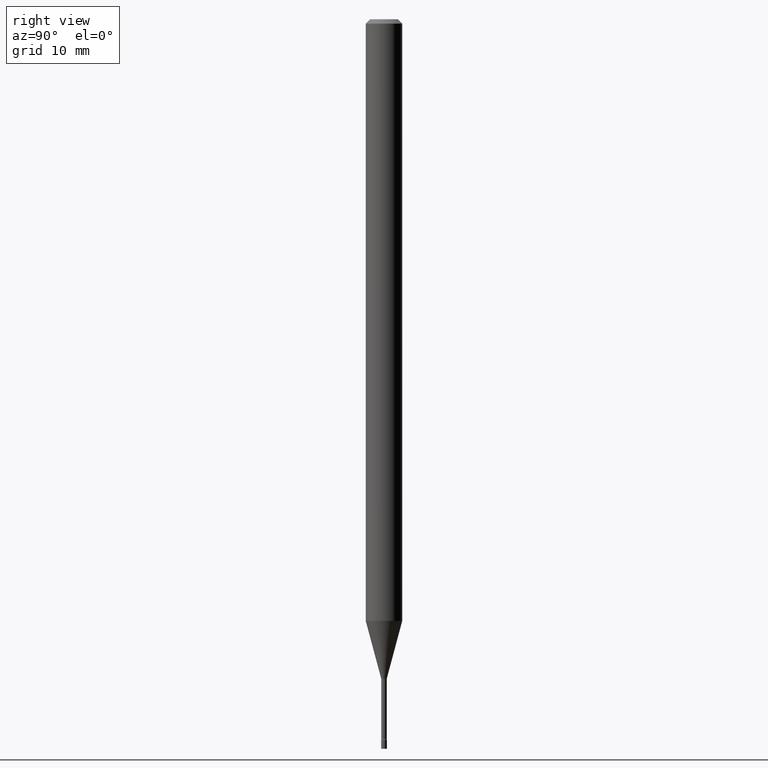
[diagram: clean part render]
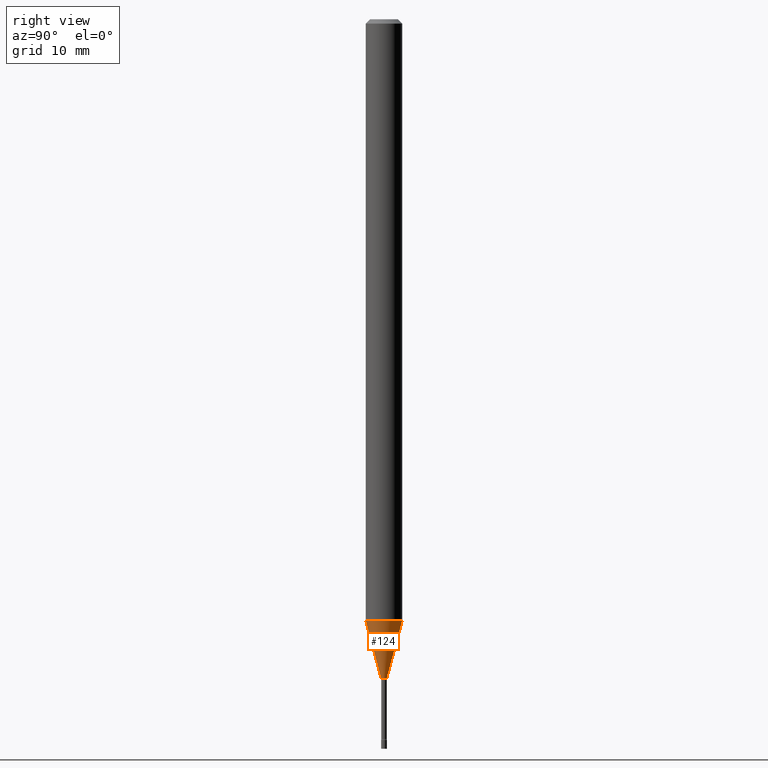
[diagram: same view with one face highlighted and labeled with its STEP entity id]
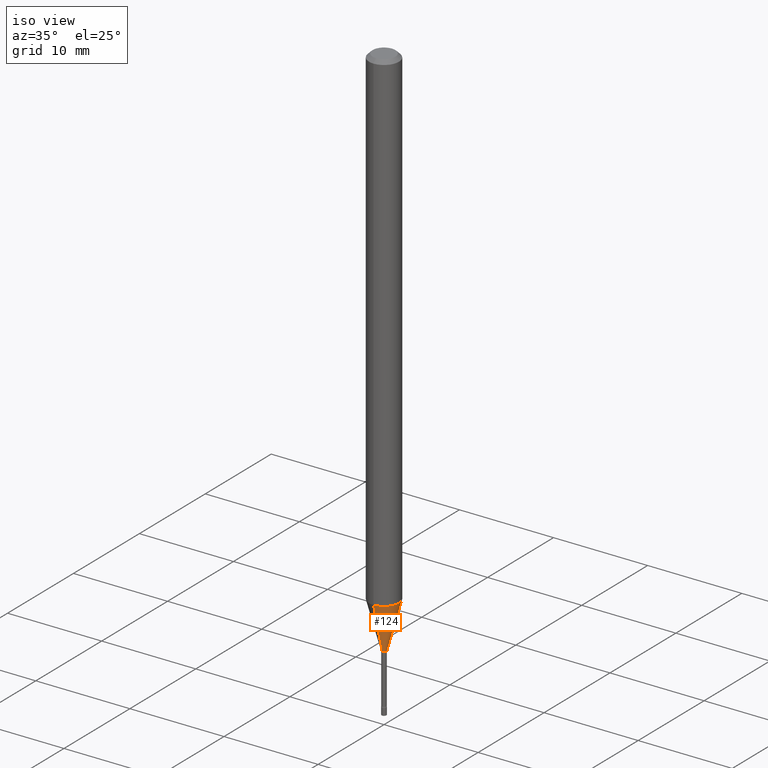
[diagram: same view with one face highlighted and labeled with its STEP entity id]
A machine part, right view. The second image highlights one B-rep face of the part: STEP entity #124.
A second angle (iso view) of the same face is appended — the face is thin or edge-on in the first view.
In plain terms, the highlighted conical surface has half-angle 15 deg.
Its self-contained STEP definition (entity closure, byte-faithful):
#34 = DIRECTION ( 'NONE',  ( -2.445536542724447659E-29, 3.491384336263527933E-15, 1.000000000000000000 ) ) ;
#75 = FACE_OUTER_BOUND ( 'NONE', #174, .T. ) ;
#77 = DIRECTION ( 'NONE',  ( 1.839019923739601104E-15, 0.2588190451025250693, 0.9659258262890670910 ) ) ;
#105 = EDGE_CURVE ( 'NONE', #242, #411, #498, .T. ) ;
#117 = CARTESIAN_POINT ( 'NONE',  ( -6.920892941964224504E-17, -0.009911112605671864792, -2.258092501787273498 ) ) ;
#124 = ADVANCED_FACE ( 'NONE', ( #75 ), #208, .T. ) ;
#135 = ORIENTED_EDGE ( 'NONE', *, *, #192, .T. ) ;
#160 = VECTOR ( 'NONE', #77, 39.37007874015748143 ) ;
#163 = CARTESIAN_POINT ( 'NONE',  ( -4.364351673553412809E-16, -0.06250000000000720257, -2.061828102118093309 ) ) ;
#166 = CARTESIAN_POINT ( 'NONE',  ( -6.920892941964224504E-17, -0.009911112605671864792, -2.258092501787273498 ) ) ;
#174 = EDGE_LOOP ( 'NONE', ( #251, #135, #377, #177 ) ) ;
#177 = ORIENTED_EDGE ( 'NONE', *, *, #245, .F. ) ;
#178 = AXIS2_PLACEMENT_3D ( 'NONE', #391, #34, #199 ) ;
#182 = DIRECTION ( 'NONE',  ( -2.445536542724447659E-29, 3.491384336263527933E-15, 1.000000000000000000 ) ) ;
#183 = VERTEX_POINT ( 'NONE', #117 ) ;
#192 = EDGE_CURVE ( 'NONE', #328, #411, #275, .T. ) ;
#196 = AXIS2_PLACEMENT_3D ( 'NONE', #277, #320, #398 ) ;
#199 = DIRECTION ( 'NONE',  ( -6.982962677686265922E-15, -1.000000000000000000, 4.370956789862821150E-15 ) ) ;
#208 = CONICAL_SURFACE ( 'NONE', #196, 0.009911112605663982209, 0.2617993877991502960 ) ;
#213 = CARTESIAN_POINT ( 'NONE',  ( 4.440892098501128074E-16, 0.06249999999999279743, -2.061828102118093753 ) ) ;
#218 = VECTOR ( 'NONE', #488, 39.37007874015748143 ) ;
#242 = VERTEX_POINT ( 'NONE', #163 ) ;
#245 = EDGE_CURVE ( 'NONE', #183, #242, #250, .T. ) ;
#250 = LINE ( 'NONE', #166, #218 ) ;
#251 = ORIENTED_EDGE ( 'NONE', *, *, #514, .T. ) ;
#261 = CARTESIAN_POINT ( 'NONE',  ( 5.522247729972846962E-29, -7.883868790574208180E-15, -2.258092501787273498 ) ) ;
#275 = LINE ( 'NONE', #439, #160 ) ;
#277 = CARTESIAN_POINT ( 'NONE',  ( 5.522247729972846962E-29, -7.883868790574208180E-15, -2.258092501787273498 ) ) ;
#281 = CARTESIAN_POINT ( 'NONE',  ( 2.572559502513586973E-16, 0.009911112605656097890, -2.258092501787273498 ) ) ;
#287 = AXIS2_PLACEMENT_3D ( 'NONE', #261, #182, #456 ) ;
#320 = DIRECTION ( 'NONE',  ( -2.445536542724447659E-29, 3.491384336263527933E-15, 1.000000000000000000 ) ) ;
#328 = VERTEX_POINT ( 'NONE', #281 ) ;
#377 = ORIENTED_EDGE ( 'NONE', *, *, #105, .F. ) ;
#391 = CARTESIAN_POINT ( 'NONE',  ( 5.042275968545992406E-29, -7.198634339803070336E-15, -2.061828102118093753 ) ) ;
#398 = DIRECTION ( 'NONE',  ( -6.982962677686264344E-15, -1.000000000000000000, 0.000000000000000000 ) ) ;
#411 = VERTEX_POINT ( 'NONE', #213 ) ;
#439 = CARTESIAN_POINT ( 'NONE',  ( 7.042269065260420504E-17, 0.009911112605656097890, -2.258092501787273498 ) ) ;
#456 = DIRECTION ( 'NONE',  ( -6.982962677686264344E-15, -1.000000000000000000, 0.000000000000000000 ) ) ;
#488 = DIRECTION ( 'NONE',  ( -1.807323732225330928E-15, -0.2588190451025182970, 0.9659258262890689783 ) ) ;
#498 = CIRCLE ( 'NONE', #178, 0.06250000000000000000 ) ;
#514 = EDGE_CURVE ( 'NONE', #183, #328, #519, .T. ) ;
#519 = CIRCLE ( 'NONE', #287, 0.009911112605663982209 ) ;